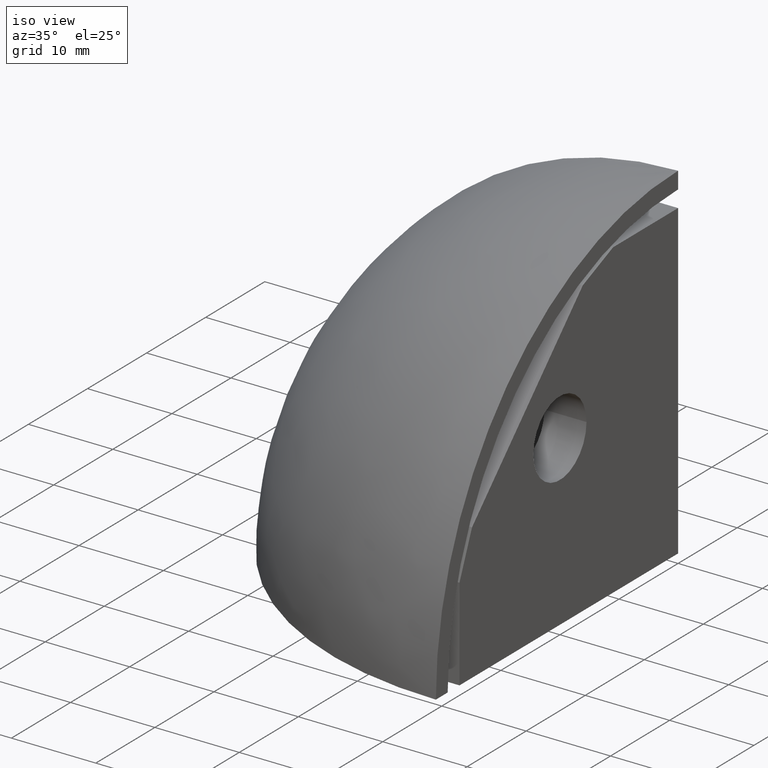
[diagram: clean part render]
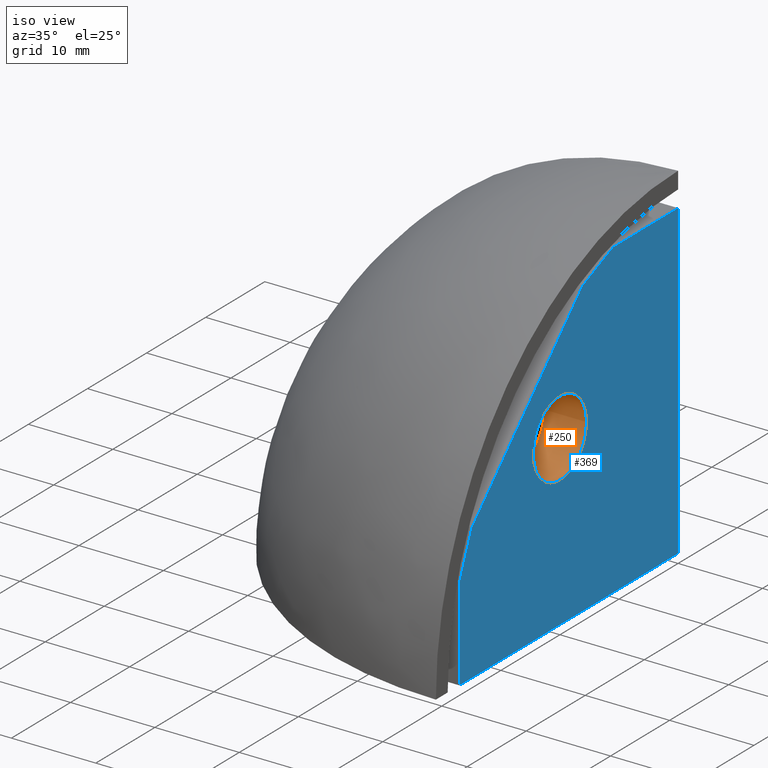
[diagram: same view with the hole feature highlighted: cylindrical wall and planar end face, labeled with their STEP entity ids]
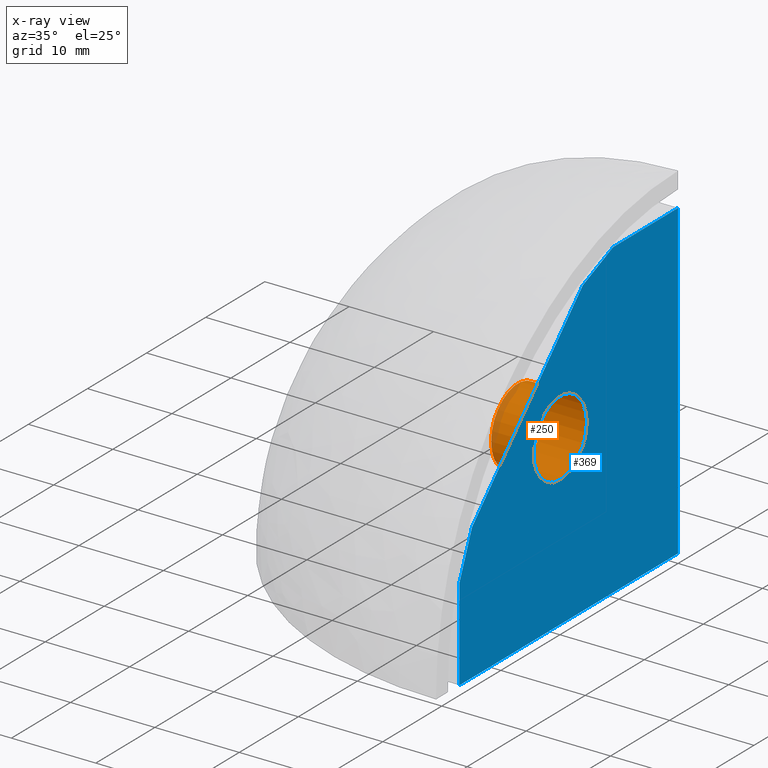
[diagram: x-ray of the same camera — body ghosted, the hole faces saturated]
A machine part, iso view. The highlighted faces form one hole feature of diameter 9 mm: the cylindrical wall (entity #250, orange) and its adjacent planar end face (entity #369, blue) — they share a circular edge in the B-rep.
The next image is the same camera in x-ray (body ghosted, the hole faces saturated) — the bore reads through the body.
Wall:
#200=CARTESIAN_POINT('',(0.0,-20.0,20.0));
#201=DIRECTION('',(1.0,0.0,0.0));
#202=DIRECTION('',(0.0,1.0,0.0));
#203=AXIS2_PLACEMENT_3D('',#200,#201,#202);
#204=CYLINDRICAL_SURFACE('',#203,4.499999999999996);
#205=CARTESIAN_POINT('',(0.0,-15.500000000000004,20.0));
#206=VERTEX_POINT('',#205);
#207=CARTESIAN_POINT('',(-5.0,-15.500000000000004,20.0));
#208=VERTEX_POINT('',#207);
#209=CARTESIAN_POINT('',(0.0,-15.500000000000004,20.0));
#210=DIRECTION('',(-1.0,0.0,0.0));
#211=VECTOR('',#210,5.0);
#212=LINE('',#209,#211);
#213=EDGE_CURVE('',#206,#208,#212,.T.);
#214=ORIENTED_EDGE('',*,*,#213,.T.);
#215=CARTESIAN_POINT('',(-5.0,-24.499999999999996,20.0));
#216=VERTEX_POINT('',#215);
#217=CARTESIAN_POINT('',(-5.0,-20.0,20.0));
#218=DIRECTION('',(1.0,0.0,0.0));
#219=DIRECTION('',(0.0,1.0,0.0));
#220=AXIS2_PLACEMENT_3D('',#217,#218,#219);
#221=CIRCLE('',#220,4.499999999999996);
#222=EDGE_CURVE('',#216,#208,#221,.T.);
#223=ORIENTED_EDGE('',*,*,#222,.F.);
#224=CARTESIAN_POINT('',(-5.0,-20.0,20.0));
#225=DIRECTION('',(1.0,0.0,0.0));
#226=DIRECTION('',(0.0,1.0,0.0));
#227=AXIS2_PLACEMENT_3D('',#224,#225,#226);
#228=CIRCLE('',#227,4.499999999999996);
#229=EDGE_CURVE('',#208,#216,#228,.T.);
#230=ORIENTED_EDGE('',*,*,#229,.F.);
#231=ORIENTED_EDGE('',*,*,#213,.F.);
#232=CARTESIAN_POINT('',(0.0,-24.499999999999996,20.0));
#233=VERTEX_POINT('',#232);
#234=CARTESIAN_POINT('',(0.0,-20.0,20.0));
#235=DIRECTION('',(1.0,0.0,0.0));
#236=DIRECTION('',(0.0,1.0,0.0));
#237=AXIS2_PLACEMENT_3D('',#234,#235,#236);
#238=CIRCLE('',#237,4.499999999999996);
#239=EDGE_CURVE('',#206,#233,#238,.T.);
#240=ORIENTED_EDGE('',*,*,#239,.T.);
#241=CARTESIAN_POINT('',(0.0,-20.0,20.0));
#242=DIRECTION('',(1.0,0.0,0.0));
#243=DIRECTION('',(0.0,1.0,0.0));
#244=AXIS2_PLACEMENT_3D('',#241,#242,#243);
#245=CIRCLE('',#244,4.499999999999996);
#246=EDGE_CURVE('',#233,#206,#245,.T.);
#247=ORIENTED_EDGE('',*,*,#246,.T.);
#248=EDGE_LOOP('',(#214,#223,#230,#231,#240,#247));
#249=FACE_OUTER_BOUND('',#248,.T.);
#250=ADVANCED_FACE('',(#249),#204,.F.);
End face:
#205=CARTESIAN_POINT('',(0.0,-15.500000000000004,20.0));
#206=VERTEX_POINT('',#205);
#232=CARTESIAN_POINT('',(0.0,-24.499999999999996,20.0));
#233=VERTEX_POINT('',#232);
#234=CARTESIAN_POINT('',(0.0,-20.0,20.0));
#235=DIRECTION('',(1.0,0.0,0.0));
#236=DIRECTION('',(0.0,1.0,0.0));
#237=AXIS2_PLACEMENT_3D('',#234,#235,#236);
#238=CIRCLE('',#237,4.499999999999996);
#239=EDGE_CURVE('',#206,#233,#238,.T.);
#241=CARTESIAN_POINT('',(0.0,-20.0,20.0));
#242=DIRECTION('',(1.0,0.0,0.0));
#243=DIRECTION('',(0.0,1.0,0.0));
#244=AXIS2_PLACEMENT_3D('',#241,#242,#243);
#245=CIRCLE('',#244,4.499999999999996);
#246=EDGE_CURVE('',#233,#206,#245,.T.);
#302=CARTESIAN_POINT('',(0.0,-37.0,0.0));
#303=DIRECTION('',(1.0,0.0,0.0));
#304=DIRECTION('',(0.0,1.0,0.0));
#305=AXIS2_PLACEMENT_3D('',#302,#303,#304);
#306=PLANE('',#305);
#307=CARTESIAN_POINT('',(0.0,-37.0,0.0));
#308=VERTEX_POINT('',#307);
#309=CARTESIAN_POINT('',(0.0,0.0,0.0));
#310=VERTEX_POINT('',#309);
#311=CARTESIAN_POINT('',(0.0,-37.0,0.0));
#312=DIRECTION('',(0.0,1.0,0.0));
#313=VECTOR('',#312,37.0);
#314=LINE('',#311,#313);
#315=EDGE_CURVE('',#308,#310,#314,.T.);
#316=ORIENTED_EDGE('',*,*,#315,.T.);
#317=CARTESIAN_POINT('',(0.0,0.0,37.0));
#318=VERTEX_POINT('',#317);
#319=CARTESIAN_POINT('',(0.0,0.0,0.0));
#320=DIRECTION('',(0.0,0.0,1.0));
#321=VECTOR('',#320,37.0);
#322=LINE('',#319,#321);
#323=EDGE_CURVE('',#310,#318,#322,.T.);
#324=ORIENTED_EDGE('',*,*,#323,.T.);
#325=CARTESIAN_POINT('',(0.0,-11.0,37.0));
#326=VERTEX_POINT('',#325);
#327=CARTESIAN_POINT('',(0.0,-11.0,37.0));
#328=DIRECTION('',(0.0,1.0,0.0));
#329=VECTOR('',#328,11.0);
#330=LINE('',#327,#329);
#331=EDGE_CURVE('',#326,#318,#330,.T.);
#332=ORIENTED_EDGE('',*,*,#331,.F.);
#333=CARTESIAN_POINT('',(-3.552714E-015,-16.121320343559642,34.878679656440362));
#334=VERTEX_POINT('',#333);
#335=CARTESIAN_POINT('',(0.0,-16.121320343559642,34.878679656440362));
#336=DIRECTION('',(0.0,0.923879532511287,0.382683432365089));
#337=VECTOR('',#336,5.543277195067718);
#338=LINE('',#335,#337);
#339=EDGE_CURVE('',#334,#326,#338,.T.);
#340=ORIENTED_EDGE('',*,*,#339,.F.);
#341=CARTESIAN_POINT('',(-3.552714E-015,-34.878679656440362,16.121320343559645));
#342=VERTEX_POINT('',#341);
#343=CARTESIAN_POINT('',(0.0,-16.121320343559642,34.878679656440362));
#344=DIRECTION('',(0.0,-0.707106781186547,-0.707106781186548));
#345=VECTOR('',#344,26.526911934581186);
#346=LINE('',#343,#345);
#347=EDGE_CURVE('',#334,#342,#346,.T.);
#348=ORIENTED_EDGE('',*,*,#347,.T.);
#349=CARTESIAN_POINT('',(0.0,-37.0,10.999999999999998));
#350=VERTEX_POINT('',#349);
#351=CARTESIAN_POINT('',(0.0,-34.878679656440355,16.121320343559642));
#352=DIRECTION('',(0.0,-0.382683432365090,-0.923879532511287));
#353=VECTOR('',#352,5.543277195067723);
#354=LINE('',#351,#353);
#355=EDGE_CURVE('',#342,#350,#354,.T.);
#356=ORIENTED_EDGE('',*,*,#355,.T.);
#357=CARTESIAN_POINT('',(0.0,-37.0,0.0));
#358=DIRECTION('',(0.0,0.0,1.0));
#359=VECTOR('',#358,10.999999999999998);
#360=LINE('',#357,#359);
#361=EDGE_CURVE('',#308,#350,#360,.T.);
#362=ORIENTED_EDGE('',*,*,#361,.F.);
#363=EDGE_LOOP('',(#316,#324,#332,#340,#348,#356,#362));
#364=FACE_OUTER_BOUND('',#363,.T.);
#365=ORIENTED_EDGE('',*,*,#246,.F.);
#366=ORIENTED_EDGE('',*,*,#239,.F.);
#367=EDGE_LOOP('',(#365,#366));
#368=FACE_BOUND('',#367,.T.);
#369=ADVANCED_FACE('',(#364,#368),#306,.T.);